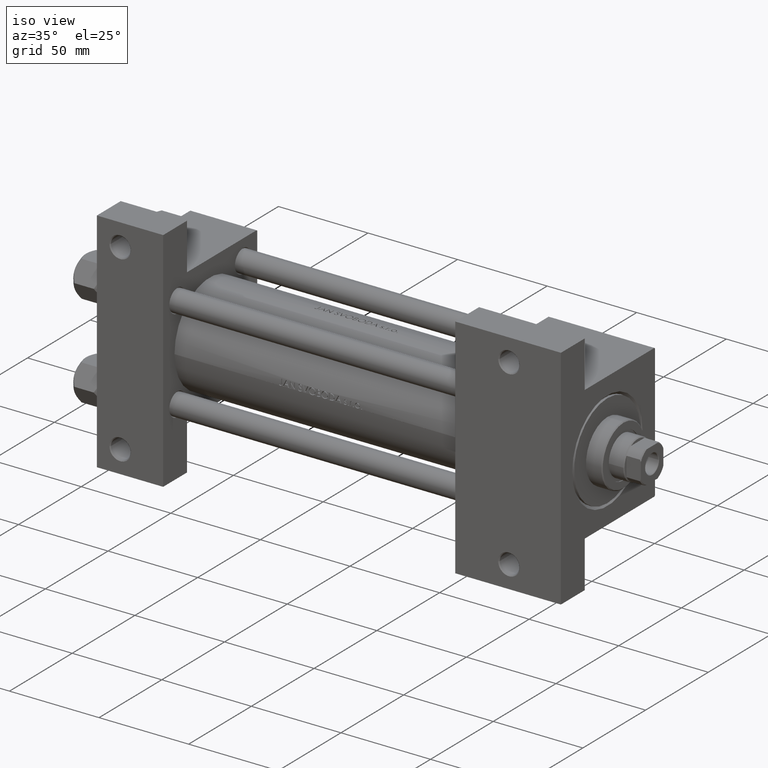
[diagram: clean part render]
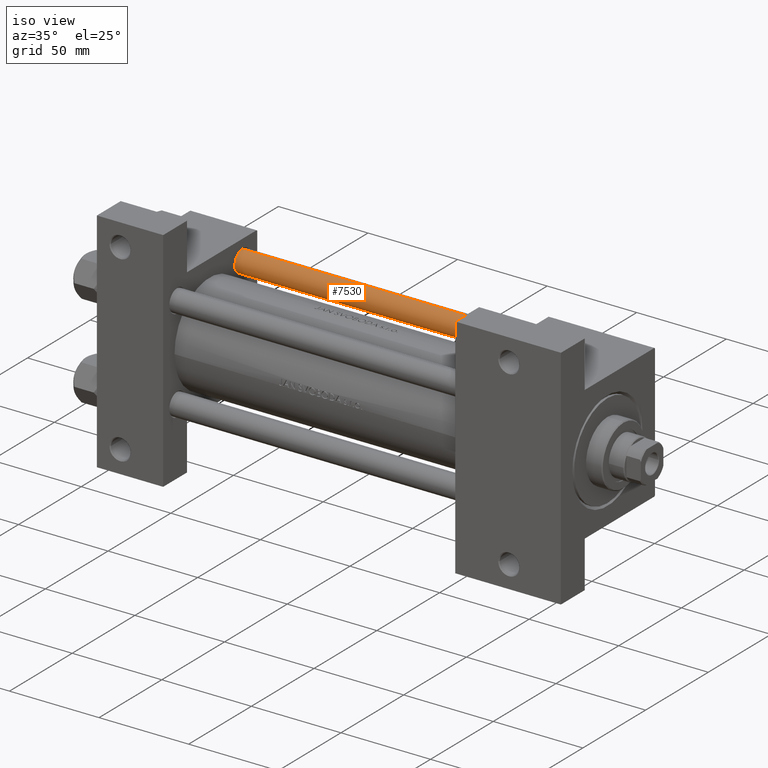
[diagram: same view with one face highlighted and labeled with its STEP entity id]
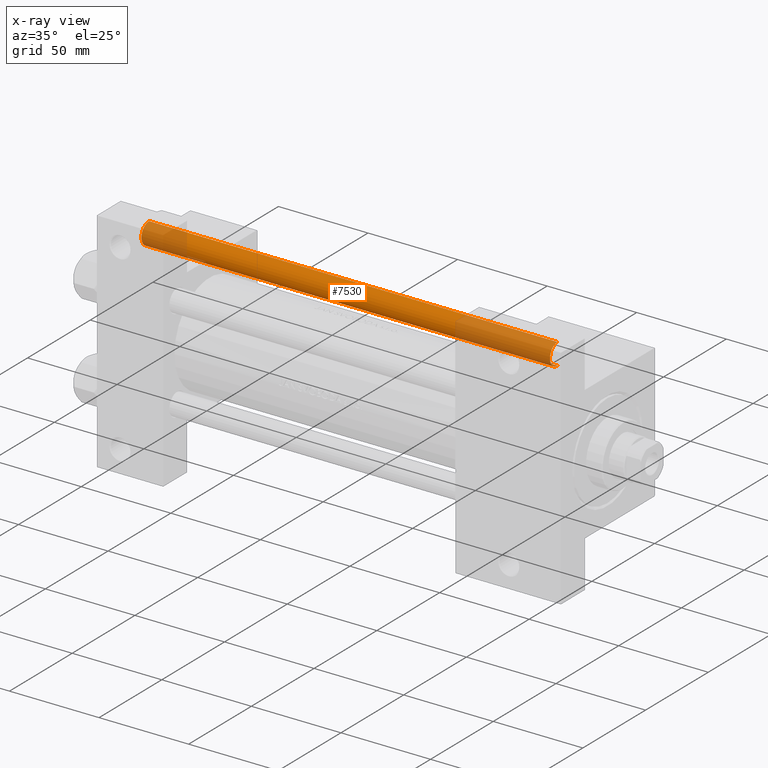
[diagram: x-ray of the same camera — body ghosted, the highlighted face saturated]
A machine part, iso view. The second image highlights one B-rep face of the part: STEP entity #7530.
The next image is the same camera in x-ray: the body ghosted, the highlighted face saturated — about 34% of this face is hidden behind the body in this view.
In plain terms, the highlighted cylindrical surface (edge-blend (fillet) strip) has radius 6 mm, axis along (-1, -0, -0).
Its self-contained STEP definition (entity closure, byte-faithful):
#86 = ORIENTED_EDGE ( 'NONE', *, *, #34126, .T. ) ;
#1328 = VECTOR ( 'NONE', #45516, 1000.000000000000000 ) ;
#2099 = CARTESIAN_POINT ( 'NONE',  ( 0.000000000000000000, 0.000000000000000000, 228.5000000000001137 ) ) ;
#3013 = DIRECTION ( 'NONE',  ( -0.000000000000000000, -0.000000000000000000, -1.000000000000000000 ) ) ;
#3636 = CARTESIAN_POINT ( 'NONE',  ( 0.000000000000000000, 0.000000000000000000, 0.5000000000001392220 ) ) ;
#4181 = CARTESIAN_POINT ( 'NONE',  ( 6.000000000000000888, 7.347880794884119736E-16, 229.0000000000000000 ) ) ;
#5577 = VERTEX_POINT ( 'NONE', #25715 ) ;
#6031 = FACE_OUTER_BOUND ( 'NONE', #27201, .T. ) ;
#6137 = CARTESIAN_POINT ( 'NONE',  ( -6.000000000000000888, 0.000000000000000000, 229.0000000000000000 ) ) ;
#7416 = ORIENTED_EDGE ( 'NONE', *, *, #34501, .T. ) ;
#7530 = ADVANCED_FACE ( 'NONE', ( #6031 ), #24326, .T. ) ;
#7716 = DIRECTION ( 'NONE',  ( 1.000000000000000000, 0.000000000000000000, 0.000000000000000000 ) ) ;
#7792 = LINE ( 'NONE', #4181, #1328 ) ;
#10066 = EDGE_CURVE ( 'NONE', #27690, #37261, #14449, .T. ) ;
#10256 = CARTESIAN_POINT ( 'NONE',  ( 6.000000000000000888, 7.347880794884119736E-16, 228.5000000000001137 ) ) ;
#13738 = DIRECTION ( 'NONE',  ( -0.000000000000000000, -0.000000000000000000, -1.000000000000000000 ) ) ;
#14449 = CIRCLE ( 'NONE', #34379, 6.000000000000000888 ) ;
#14540 = ORIENTED_EDGE ( 'NONE', *, *, #36773, .F. ) ;
#17333 = CARTESIAN_POINT ( 'NONE',  ( 6.000000000000000888, 7.347880794884119736E-16, 0.5000000000001392220 ) ) ;
#20639 = DIRECTION ( 'NONE',  ( 1.000000000000000000, 0.000000000000000000, 0.000000000000000000 ) ) ;
#21780 = ORIENTED_EDGE ( 'NONE', *, *, #10066, .T. ) ;
#24326 = CYLINDRICAL_SURFACE ( 'NONE', #29703, 6.000000000000000888 ) ;
#25715 = CARTESIAN_POINT ( 'NONE',  ( -6.000000000000000888, 0.000000000000000000, 228.5000000000001137 ) ) ;
#26122 = CARTESIAN_POINT ( 'NONE',  ( -6.000000000000000888, 0.000000000000000000, 0.5000000000001392220 ) ) ;
#27201 = EDGE_LOOP ( 'NONE', ( #14540, #86, #7416, #21780 ) ) ;
#27690 = VERTEX_POINT ( 'NONE', #26122 ) ;
#29703 = AXIS2_PLACEMENT_3D ( 'NONE', #38976, #13738, #39457 ) ;
#33103 = VERTEX_POINT ( 'NONE', #10256 ) ;
#33451 = DIRECTION ( 'NONE',  ( -0.000000000000000000, -0.000000000000000000, 1.000000000000000000 ) ) ;
#34126 = EDGE_CURVE ( 'NONE', #33103, #5577, #35058, .T. ) ;
#34379 = AXIS2_PLACEMENT_3D ( 'NONE', #3636, #33451, #7716 ) ;
#34501 = EDGE_CURVE ( 'NONE', #5577, #27690, #43157, .T. ) ;
#35058 = CIRCLE ( 'NONE', #42728, 6.000000000000000888 ) ;
#36773 = EDGE_CURVE ( 'NONE', #33103, #37261, #7792, .T. ) ;
#37261 = VERTEX_POINT ( 'NONE', #17333 ) ;
#38890 = VECTOR ( 'NONE', #3013, 1000.000000000000000 ) ;
#38976 = CARTESIAN_POINT ( 'NONE',  ( 0.000000000000000000, 0.000000000000000000, 229.0000000000000000 ) ) ;
#39457 = DIRECTION ( 'NONE',  ( -1.000000000000000000, 0.000000000000000000, 0.000000000000000000 ) ) ;
#42728 = AXIS2_PLACEMENT_3D ( 'NONE', #2099, #47047, #20639 ) ;
#43157 = LINE ( 'NONE', #6137, #38890 ) ;
#45516 = DIRECTION ( 'NONE',  ( -0.000000000000000000, -0.000000000000000000, -1.000000000000000000 ) ) ;
#47047 = DIRECTION ( 'NONE',  ( 0.000000000000000000, 0.000000000000000000, -1.000000000000000000 ) ) ;